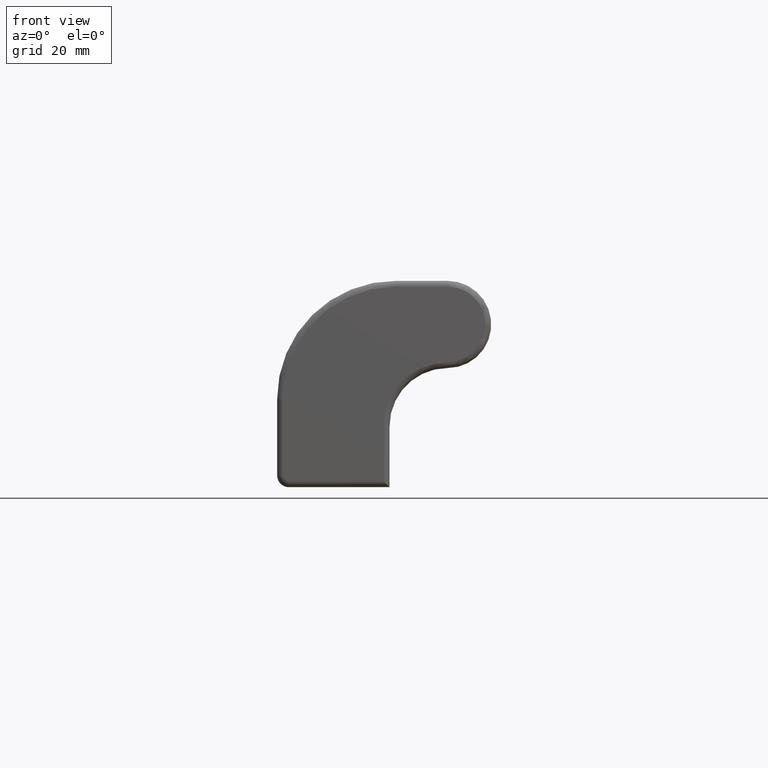
[diagram: clean part render]
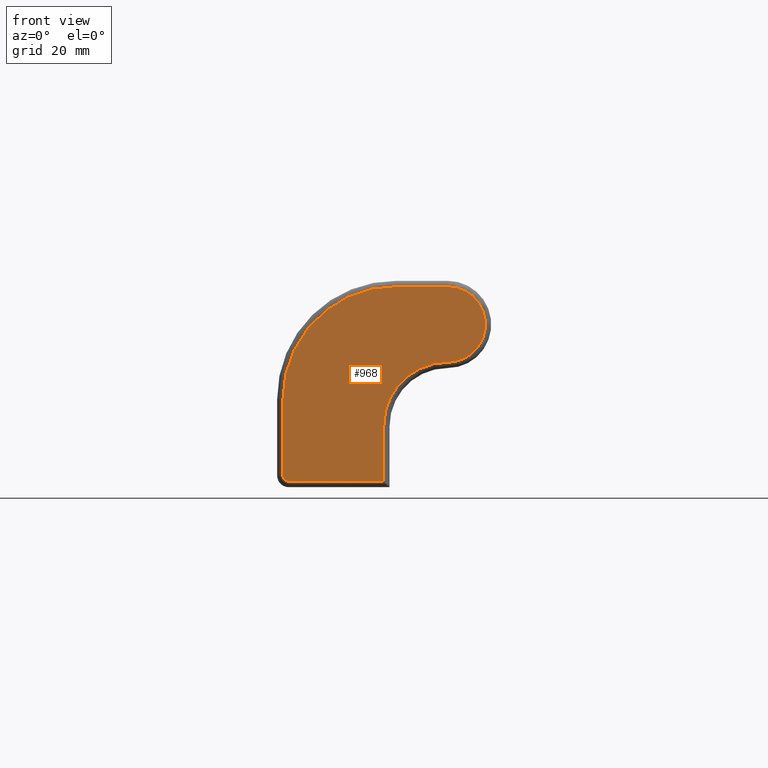
[diagram: same view with one face highlighted and labeled with its STEP entity id]
A machine part, front view. The second image highlights one B-rep face of the part: STEP entity #968.
In plain terms, the highlighted planar face has unit normal (0, -1, 0).
Its self-contained STEP definition (entity closure, byte-faithful):
#47=PLANE('',#1072);
#96=FACE_OUTER_BOUND('',#154,.T.);
#154=EDGE_LOOP('',(#825,#826,#827,#828,#829,#830,#831,#832,#833));
#246=LINE('',#1697,#323);
#248=LINE('',#1704,#325);
#249=LINE('',#1709,#326);
#250=LINE('',#1795,#327);
#323=VECTOR('',#1318,16.3400041553286);
#325=VECTOR('',#1326,9.49572029590565);
#326=VECTOR('',#1331,8.73668479804794);
#327=VECTOR('',#1342,13.1441380617739);
#374=CIRCLE('',#1070,19.3622382391187);
#376=CIRCLE('',#1073,1.);
#377=CIRCLE('',#1074,11.0050038431456);
#378=CIRCLE('',#1075,6.50218978674443);
#379=CIRCLE('',#1076,2.);
#465=VERTEX_POINT('',#1694);
#466=VERTEX_POINT('',#1696);
#468=VERTEX_POINT('',#1702);
#469=VERTEX_POINT('',#1706);
#470=VERTEX_POINT('',#1708);
#471=VERTEX_POINT('',#1788);
#472=VERTEX_POINT('',#1790);
#473=VERTEX_POINT('',#1794);
#474=VERTEX_POINT('',#1797);
#588=EDGE_CURVE('',#466,#465,#246,.T.);
#592=EDGE_CURVE('',#465,#468,#248,.T.);
#594=EDGE_CURVE('',#470,#469,#249,.T.);
#597=EDGE_CURVE('',#472,#471,#374,.T.);
#599=EDGE_CURVE('',#471,#473,#250,.T.);
#600=EDGE_CURVE('',#473,#466,#376,.T.);
#601=EDGE_CURVE('',#468,#474,#377,.T.);
#602=EDGE_CURVE('',#474,#470,#378,.T.);
#603=EDGE_CURVE('',#472,#469,#379,.T.);
#825=ORIENTED_EDGE('',*,*,#599,.T.);
#826=ORIENTED_EDGE('',*,*,#600,.T.);
#827=ORIENTED_EDGE('',*,*,#588,.T.);
#828=ORIENTED_EDGE('',*,*,#592,.T.);
#829=ORIENTED_EDGE('',*,*,#601,.T.);
#830=ORIENTED_EDGE('',*,*,#602,.T.);
#831=ORIENTED_EDGE('',*,*,#594,.T.);
#832=ORIENTED_EDGE('',*,*,#603,.F.);
#833=ORIENTED_EDGE('',*,*,#597,.T.);
#968=ADVANCED_FACE('',(#96),#47,.T.);
#1070=AXIS2_PLACEMENT_3D('',#1791,#1336,#1337);
#1072=AXIS2_PLACEMENT_3D('',#1793,#1340,#1341);
#1073=AXIS2_PLACEMENT_3D('',#1796,#1343,#1344);
#1074=AXIS2_PLACEMENT_3D('',#1798,#1345,#1346);
#1075=AXIS2_PLACEMENT_3D('',#1799,#1347,#1348);
#1076=AXIS2_PLACEMENT_3D('',#1800,#1349,#1350);
#1318=DIRECTION('',(1.,0.,0.));
#1326=DIRECTION('',(0.,0.,1.));
#1331=DIRECTION('',(-1.,0.,0.));
#1336=DIRECTION('center_axis',(0.,-1.,0.));
#1337=DIRECTION('ref_axis',(-1.,0.,0.));
#1340=DIRECTION('center_axis',(0.,-1.,0.));
#1341=DIRECTION('ref_axis',(0.,0.,-1.));
#1342=DIRECTION('',(0.,0.,-1.));
#1343=DIRECTION('center_axis',(0.,-1.,0.));
#1344=DIRECTION('ref_axis',(0.,0.,-1.));
#1345=DIRECTION('center_axis',(0.,1.,0.));
#1346=DIRECTION('ref_axis',(-0.000714249070227,0.,0.9999997449241));
#1347=DIRECTION('center_axis',(0.,-1.,0.));
#1348=DIRECTION('ref_axis',(0.,0.,1.));
#1349=DIRECTION('center_axis',(0.,-1.,0.));
#1350=DIRECTION('ref_axis',(-0.010934269242787,0.,-0.999940219091185));
#1694=CARTESIAN_POINT('',(8.84000415536689,-9.4999999999618,1.));
#1696=CARTESIAN_POINT('',(-7.49999999996167,-9.4999999999618,1.));
#1697=CARTESIAN_POINT('',(-7.49999999996167,-9.4999999999618,1.));
#1702=CARTESIAN_POINT('',(8.84000415536689,-9.4999999999618,10.4957202959056));
#1704=CARTESIAN_POINT('',(8.84000415536689,-9.4999999999618,1.));
#1706=CARTESIAN_POINT('',(11.0958187036921,-9.4999999999618,34.5050992468769));
#1708=CARTESIAN_POINT('',(19.83250350174,-9.4999999999618,34.5050992468769));
#1709=CARTESIAN_POINT('',(19.83250350174,-9.4999999999618,34.5050992468769));
#1788=CARTESIAN_POINT('',(-8.49999999996167,-9.4999999999618,15.1441380617739));
#1790=CARTESIAN_POINT('',(11.0739501652065,-9.4999999999618,34.5052188086945));
#1791=CARTESIAN_POINT('Origin',(10.862238239157,-9.4999999999618,15.1441380617745));
#1793=CARTESIAN_POINT('Origin',(-13.1834740533131,-9.4999999999618,-3.550642354533));
#1794=CARTESIAN_POINT('',(-8.49999999996167,-9.4999999999618,2.));
#1795=CARTESIAN_POINT('',(-8.49999999996167,-9.4999999999618,15.1441380617739));
#1796=CARTESIAN_POINT('Origin',(-7.49999999996167,-9.4999999999618,2.));
#1797=CARTESIAN_POINT('',(19.8371476847496,-9.4999999999618,21.50072133194));
#1798=CARTESIAN_POINT('Origin',(19.8450079985125,-9.4999999999618,10.4957202959056));
#1799=CARTESIAN_POINT('Origin',(19.83250350174,-9.4999999999618,28.0029094601325));
#1800=CARTESIAN_POINT('Origin',(11.0958187036921,-9.4999999999618,36.5050992468769));